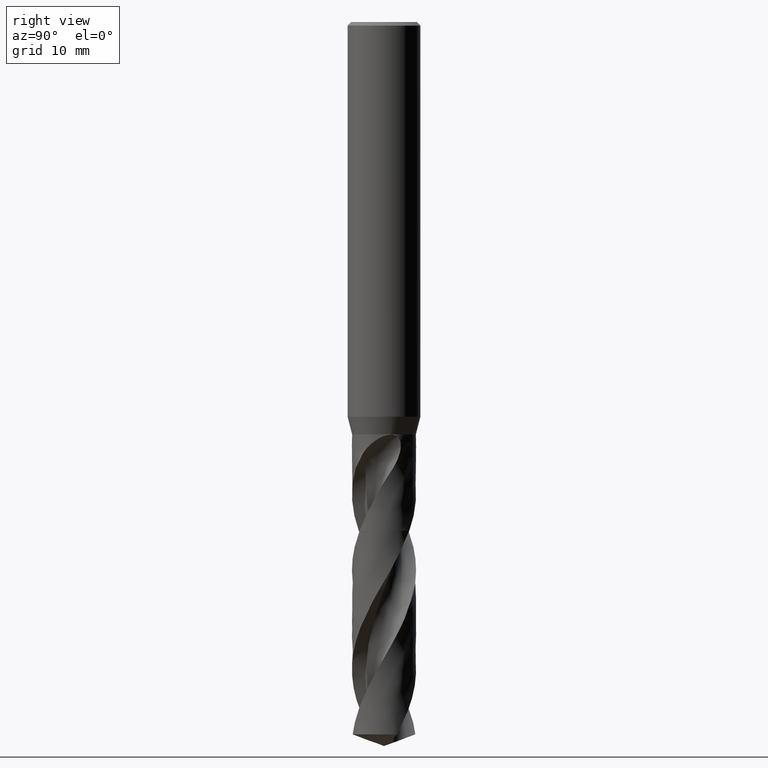
[diagram: clean part render]
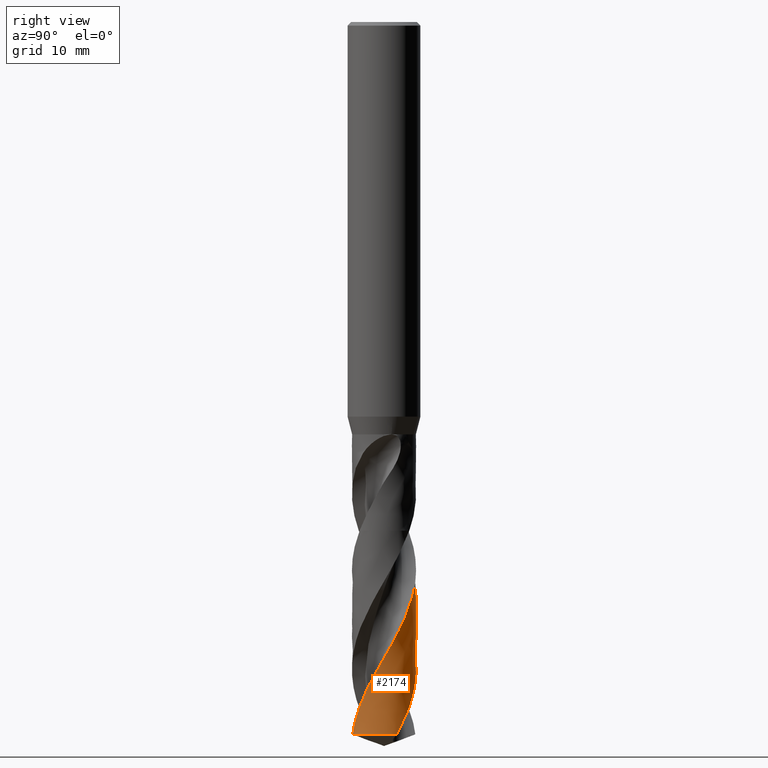
[diagram: same view with one face highlighted and labeled with its STEP entity id]
A machine part, right view. The second image highlights one B-rep face of the part: STEP entity #2174.
In plain terms, the highlighted face is a freeform B-spline surface patch.
Its self-contained STEP definition (entity closure, byte-faithful):
#1678 = VERTEX_POINT('', #1679);
#1679 = CARTESIAN_POINT('', (-3.5, 3.61270805748469E-15, -55.5));
#1784 = VERTEX_POINT('', #1785);
#1785 = CARTESIAN_POINT('', (-2.27351250297305, 2.66104131851147, -55.5));
#1855 = EDGE_CURVE('', #1678, #1784, #1856, .T.);
#1856 = CIRCLE('', #1857, 3.5);
#1857 = AXIS2_PLACEMENT_3D('', #1858, #1859, #1860);
#1858 = CARTESIAN_POINT('', (2.08091669844333E-31, 3.39839486763391E-15, -55.5));
#1859 = DIRECTION('', (3.74939945665464E-33, 6.12323399573677E-17, -1.));
#1860 = DIRECTION('', (-1., 6.12323399573677E-17, 0.));
#1872 = VERTEX_POINT('', #1873);
#1873 = CARTESIAN_POINT('', (-3.5, 3.95160296070943E-15, -61.0345737801412));
#1907 = EDGE_CURVE('', #1908, #1872, #1910, .T.);
#1908 = VERTEX_POINT('', #1909);
#1909 = CARTESIAN_POINT('', (3.19792631275269, 1.42241600743383, -77.7261041800683));
#1910 = B_SPLINE_CURVE_WITH_KNOTS('', 3, (#1911, #1912, #1913, #1914, #1915, #1916, #1917, #1918, #1919, #1920, #1921, #1922, #1923, #1924, #1925, #1926, #1927, #1928, #1929, #1930, #1931, #1932, #1933, #1934, #1935, #1936, #1937, #1938, #1939, #1940, #1941, #1942, #1943, #1944, #1945, #1946, #1947, #1948, #1949, #1950, #1951, #1952, #1953, #1954, #1955, #1956, #1957, #1958, #1959, #1960, #1961, #1962, #1963, #1964, #1965, #1966, #1967, #1968, #1969, #1970, #1971, #1972, #1973, #1974, #1975, #1976, #1977, #1978, #1979, #1980, #1981, #1982, #1983, #1984, #1985, #1986, #1987, #1988, #1989, #1990, #1991, #1992, #1993, #1994, #1995, #1996, #1997, #1998, #1999, #2000, #2001, #2002, #2003, #2004), .UNSPECIFIED., .F., .U., (4, 3, 3, 3, 3, 3, 3, 3, 3, 3, 3, 3, 3, 3, 3, 3, 3, 3, 3, 3, 3, 3, 3, 3, 3, 3, 3, 3, 3, 3, 3, 4), (0., 0.665648056662352, 1.33111019200664, 1.99638937858684, 2.66148780582144, 3.32640685160313, 3.99114706284363, 4.65570818555734, 5.32008915477022, 5.98428807460622, 6.64830218489924, 7.31212781025597, 7.97576031481546, 8.10706776787024, 8.16544412923008, 8.83198911601607, 9.49831969136428, 10.1644438311635, 10.8303682375001, 11.4960984290791, 12.1616388539613, 12.8269929769791, 13.4921633455714, 14.1571516368893, 14.8219586881774, 15.4865845117268, 16.1510282963672, 16.8152884355146, 17.4793625120888, 18.1432472243601, 18.8069383242188, 19.2191948978609), .UNSPECIFIED.);
#1911 = CARTESIAN_POINT('', (3.19792631275269, 1.42241600743383, -77.7261041800683));
#1912 = CARTESIAN_POINT('', (3.15333846559889, 1.52265999294646, -77.5332441442821));
#1913 = CARTESIAN_POINT('', (3.10401565139608, 1.620841901902, -77.3403380385368));
#1914 = CARTESIAN_POINT('', (3.05019959439073, 1.71647383737086, -77.1474901941735));
#1915 = CARTESIAN_POINT('', (2.9963985686803, 1.81207906200459, -76.954696213898));
#1916 = CARTESIAN_POINT('', (2.93807801262715, 1.90518693096879, -76.7618560870829));
#1917 = CARTESIAN_POINT('', (2.8755240700526, 1.9953348898238, -76.5690744023775));
#1918 = CARTESIAN_POINT('', (2.81298732479984, 2.08545806521364, -76.3763457171878));
#1919 = CARTESIAN_POINT('', (2.74618646775833, 2.17267061991853, -76.183570653926));
#1920 = CARTESIAN_POINT('', (2.67544935059256, 2.25653955702395, -75.9908541808678));
#1921 = CARTESIAN_POINT('', (2.60473145301951, 2.34038570656215, -75.7981900697417));
#1922 = CARTESIAN_POINT('', (2.53004224047157, 2.42093414727567, -75.6054795528292));
#1923 = CARTESIAN_POINT('', (2.45174869668041, 2.49778468414031, -75.4128276036312));
#1924 = CARTESIAN_POINT('', (2.3734762691768, 2.57461449390593, -75.2202276139405));
#1925 = CARTESIAN_POINT('', (2.29156014978641, 2.64778891605358, -75.0275813018316));
#1926 = CARTESIAN_POINT('', (2.2064034592199, 2.7169438299572, -74.8349934399618));
#1927 = CARTESIAN_POINT('', (2.12126967212981, 2.78608014417206, -74.6424573759195));
#1928 = CARTESIAN_POINT('', (2.03285175155351, 2.85123587386147, -74.4498751501755));
#1929 = CARTESIAN_POINT('', (1.94158562369221, 2.91208606773079, -74.257351189548));
#1930 = CARTESIAN_POINT('', (1.85034408395738, 2.97291986787006, -74.0648790970516));
#1931 = CARTESIAN_POINT('', (1.75620677066398, 3.02948315791028, -73.8723610339553));
#1932 = CARTESIAN_POINT('', (1.65963868082877, 3.08149305517585, -73.679901035996));
#1933 = CARTESIAN_POINT('', (1.56309676929208, 3.13348885326415, -73.48749321133));
#1934 = CARTESIAN_POINT('', (1.46407287419531, 3.18096198958346, -73.2950395912682));
#1935 = CARTESIAN_POINT('', (1.36305692931654, 3.2236742713001, -73.1026438673929));
#1936 = CARTESIAN_POINT('', (1.26206866417374, 3.26637484927352, -72.9103008625497));
#1937 = CARTESIAN_POINT('', (1.15903406340955, 3.30434058058611, -72.7179121686226));
#1938 = CARTESIAN_POINT('', (1.05446344694581, 3.33738023591189, -72.5255812872845));
#1939 = CARTESIAN_POINT('', (0.949921926656809, 3.37041069814293, -72.333303920912));
#1940 = CARTESIAN_POINT('', (0.843787822778452, 3.39853596841132, -72.1409808477466));
#1941 = CARTESIAN_POINT('', (0.736586887603398, 3.4216136188955, -71.9487156453193));
#1942 = CARTESIAN_POINT('', (0.62941638214531, 3.44468471863111, -71.7565050186816));
#1943 = CARTESIAN_POINT('', (0.521121216742815, 3.46272366255948, -71.5642484995034));
#1944 = CARTESIAN_POINT('', (0.412237322634221, 3.47563812699601, -71.3720500809676));
#1945 = CARTESIAN_POINT('', (0.303385105134113, 3.48854883434397, -71.1799075769829));
#1946 = CARTESIAN_POINT('', (0.193886019195773, 3.49634500287129, -70.9877189187717));
#1947 = CARTESIAN_POINT('', (0.0842812862825978, 3.49898509067767, -70.7955885830206));
#1948 = CARTESIAN_POINT('', (0.0625947079087257, 3.49950746292935, -70.7575733488832));
#1949 = CARTESIAN_POINT('', (0.0409026399894575, 3.49982822274565, -70.7195579409731));
#1950 = CARTESIAN_POINT('', (0.0192093113132478, 3.4999472856543, -70.6815431557464));
#1951 = CARTESIAN_POINT('', (0.00956494182439703, 3.50000021836466, -70.6646426311549));
#1952 = CARTESIAN_POINT('', (-7.97439437248753E-5, 3.50001328759533, -70.6477421151787));
#1953 = CARTESIAN_POINT('', (-0.00972437897314665, 3.49998649089587, -70.6308416804723));
#1954 = CARTESIAN_POINT('', (-0.11984743184064, 3.49968052448642, -70.4378714479047));
#1955 = CARTESIAN_POINT('', (-0.229997160669895, 3.49417132150522, -70.2448547492178));
#1956 = CARTESIAN_POINT('', (-0.339622369570422, 3.48348340689142, -70.0518967923976));
#1957 = CARTESIAN_POINT('', (-0.449212314686625, 3.47279893032184, -69.8590009054959));
#1958 = CARTESIAN_POINT('', (-0.558338040024515, 3.45693324865392, -69.6660583365254));
#1959 = CARTESIAN_POINT('', (-0.666454107647296, 3.43596259036681, -69.4731747324877));
#1960 = CARTESIAN_POINT('', (-0.774536679884153, 3.41499842898907, -69.2803508856249));
#1961 = CARTESIAN_POINT('', (-0.881668594458222, 3.3889211478435, -69.0874801541488));
#1962 = CARTESIAN_POINT('', (-0.987314838669354, 3.35785786020543, -68.8946685423414));
#1963 = CARTESIAN_POINT('', (-1.09292940546647, 3.32680388671411, -68.7019147439782));
#1964 = CARTESIAN_POINT('', (-1.19711581315337, 3.29075025133888, -68.5091139813381));
#1965 = CARTESIAN_POINT('', (-1.29935378477994, 3.2498738040081, -68.3163723771525));
#1966 = CARTESIAN_POINT('', (-1.4015619390238, 3.20900927816456, -68.1236869854492));
#1967 = CARTESIAN_POINT('', (-1.50187753452597, 3.16330285841201, -67.9309546496358));
#1968 = CARTESIAN_POINT('', (-1.59979931474595, 3.11297962610397, -67.7382814192927));
#1969 = CARTESIAN_POINT('', (-1.6976931823175, 3.06267073845641, -67.5456631105425));
#1970 = CARTESIAN_POINT('', (-1.79324723824463, 3.00772060067154, -67.3529979509864));
#1971 = CARTESIAN_POINT('', (-1.88598348186998, 2.948400635279, -67.1603917798123));
#1972 = CARTESIAN_POINT('', (-1.97869376623812, 2.88909727506885, -66.967839524054));
#1973 = CARTESIAN_POINT('', (-2.06863802619236, 2.82539439207181, -66.7752405538685));
#1974 = CARTESIAN_POINT('', (-2.15536566985488, 2.75760744653967, -66.5827004219541));
#1975 = CARTESIAN_POINT('', (-2.24206936147774, 2.68983922209275, -66.3902134648833));
#1976 = CARTESIAN_POINT('', (-2.32560556802991, 2.6179521520734, -66.1976799392573));
#1977 = CARTESIAN_POINT('', (-2.40555513368605, 2.54230299114734, -66.0052051034197));
#1978 = CARTESIAN_POINT('', (-2.48548281472483, 2.46667453768764, -65.8127829537737));
#1979 = CARTESIAN_POINT('', (-2.5618698047493, 2.38724440915295, -65.6203143536705));
#1980 = CARTESIAN_POINT('', (-2.63433223260889, 2.30440744839924, -65.4279043348952));
#1981 = CARTESIAN_POINT('', (-2.70677491110933, 2.22159306454415, -65.2355467567388));
#1982 = CARTESIAN_POINT('', (-2.77533521470907, 2.13532791053188, -65.0431427773015));
#1983 = CARTESIAN_POINT('', (-2.83966816391695, 2.04604123097179, -64.8507973530899));
#1984 = CARTESIAN_POINT('', (-2.90398357583355, 1.95677889114004, -64.6585043626275));
#1985 = CARTESIAN_POINT('', (-2.96410945939132, 1.8644473816341, -64.4661649058967));
#1986 = CARTESIAN_POINT('', (-3.01974301955158, 1.76950617288256, -64.2738841071468));
#1987 = CARTESIAN_POINT('', (-3.07536134185583, 1.67459096822756, -64.081655973499));
#1988 = CARTESIAN_POINT('', (-3.12652028109273, 1.57701550869061, -63.8893811993186));
#1989 = CARTESIAN_POINT('', (-3.17296200667338, 1.47726507580979, -63.6971652622022));
#1990 = CARTESIAN_POINT('', (-3.21939089623421, 1.37754221293237, -63.5050024516126));
#1991 = CARTESIAN_POINT('', (-3.26113036999707, 1.27559149995183, -63.31279284134));
#1992 = CARTESIAN_POINT('', (-3.29796968954397, 1.17191976126752, -63.1206421919174));
#1993 = CARTESIAN_POINT('', (-3.33479869021399, 1.06827706155355, -62.9285453648487));
#1994 = CARTESIAN_POINT('', (-3.36675014336633, 0.962858409535763, -62.7364016739754));
#1995 = CARTESIAN_POINT('', (-3.39366206952621, 0.856187922047096, -62.5443169770485));
#1996 = CARTESIAN_POINT('', (-3.42056632160528, 0.749547852222966, -62.3522870541085));
#1997 = CARTESIAN_POINT('', (-3.44244841142891, 0.641599194707186, -62.1602102826447));
#1998 = CARTESIAN_POINT('', (-3.45919644471422, 0.532878932664068, -61.968192464256));
#1999 = CARTESIAN_POINT('', (-3.47593959367689, 0.424190377319191, -61.7762306450979));
#2000 = CARTESIAN_POINT('', (-3.48756071795782, 0.314671913979353, -61.5842220528814));
#2001 = CARTESIAN_POINT('', (-3.49399896605696, 0.204868799953621, -61.3922723192887));
#2002 = CARTESIAN_POINT('', (-3.49799813088255, 0.136663793779649, -61.2730413404504));
#2003 = CARTESIAN_POINT('', (-3.5, 0.0683302317551449, -61.1538001276048));
#2004 = CARTESIAN_POINT('', (-3.5, 4.27733297458698E-15, -61.0345737801412));
#2161 = EDGE_CURVE('', #1678, #1872, #2162, .T.);
#2162 = LINE('', #2163, #2164);
#2163 = CARTESIAN_POINT('', (-3.5, 3.61270805748469E-15, -55.5));
#2164 = VECTOR('', #2165, 5.5345737801412);
#2165 = DIRECTION('', (4.44089209850063E-16, 3.3889490322474E-16, -5.5345737801412));
#2174 = ADVANCED_FACE('', (#2175), #2340, .T.);
#2175 = FACE_OUTER_BOUND('', #2176, .T.);
#2176 = EDGE_LOOP('', (#2177, #2178, #2196, #2316, #2331, #2338, #2339));
#2177 = ORIENTED_EDGE('', *, *, #1855, .T.);
#2178 = ORIENTED_EDGE('', *, *, #2179, .T.);
#2179 = EDGE_CURVE('', #1784, #2180, #2182, .T.);
#2180 = VERTEX_POINT('', #2181);
#2181 = CARTESIAN_POINT('', (-1.42035455528917, 3.19884243708085, -57.2561173635629));
#2182 = B_SPLINE_CURVE_WITH_KNOTS('', 3, (#2183, #2184, #2185, #2186, #2187, #2188, #2189, #2190, #2191, #2192, #2193, #2194, #2195), .UNSPECIFIED., .F., .U., (4, 3, 3, 3, 4), (4.2210899888423, 4.68101404682923, 5.34566818876504, 6.01013429872996, 6.24777782940595), .UNSPECIFIED.);
#2183 = CARTESIAN_POINT('', (-2.27351250297305, 2.66104131851147, -55.5));
#2184 = CARTESIAN_POINT('', (-2.21528860404127, 2.71078604110273, -55.6328111025407));
#2185 = CARTESIAN_POINT('', (-2.15542255696311, 2.75862565120701, -55.7656713950018));
#2186 = CARTESIAN_POINT('', (-2.09407522129527, 2.80443380516588, -55.8984925763996));
#2187 = CARTESIAN_POINT('', (-2.00541980081818, 2.87063294986047, -56.0904376308489));
#2188 = CARTESIAN_POINT('', (-1.9136026945913, 2.932637352559, -56.2824406128461));
#2189 = CARTESIAN_POINT('', (-1.81909616396089, 2.99013196134598, -56.474398680909));
#2190 = CARTESIAN_POINT('', (-1.72461636941485, 3.04761030479446, -56.666302443655));
#2191 = CARTESIAN_POINT('', (-1.6273964670682, 3.10061346637828, -56.8582689516835));
#2192 = CARTESIAN_POINT('', (-1.52792948044927, 3.14887781642507, -57.0501911150378));
#2193 = CARTESIAN_POINT('', (-1.4923555278709, 3.16613935975872, -57.1188312756578));
#2194 = CARTESIAN_POINT('', (-1.45648953734022, 3.18279773110641, -57.1874750361506));
#2195 = CARTESIAN_POINT('', (-1.4203545552891, 3.19884243708088, -57.256117363563));
#2196 = ORIENTED_EDGE('', *, *, #2197, .T.);
#2197 = EDGE_CURVE('', #2180, #2198, #2200, .T.);
#2198 = VERTEX_POINT('', #2199);
#2199 = CARTESIAN_POINT('', (1.43178876151678, -3.19374090094895, -76.4695561598545));
#2200 = B_SPLINE_CURVE_WITH_KNOTS('', 3, (#2201, #2202, #2203, #2204, #2205, #2206, #2207, #2208, #2209, #2210, #2211, #2212, #2213, #2214, #2215, #2216, #2217, #2218, #2219, #2220, #2221, #2222, #2223, #2224, #2225, #2226, #2227, #2228, #2229, #2230, #2231, #2232, #2233, #2234, #2235, #2236, #2237, #2238, #2239, #2240, #2241, #2242, #2243, #2244, #2245, #2246, #2247, #2248, #2249, #2250, #2251, #2252, #2253, #2254, #2255, #2256, #2257, #2258, #2259, #2260, #2261, #2262, #2263, #2264, #2265, #2266, #2267, #2268, #2269, #2270, #2271, #2272, #2273, #2274, #2275, #2276, #2277, #2278, #2279, #2280, #2281, #2282, #2283, #2284, #2285, #2286, #2287, #2288, #2289, #2290, #2291, #2292, #2293, #2294, #2295, #2296, #2297, #2298, #2299, #2300, #2301, #2302, #2303, #2304, #2305, #2306, #2307, #2308, #2309, #2310, #2311, #2312, #2313, #2314, #2315), .UNSPECIFIED., .F., .U., (4, 3, 3, 3, 3, 3, 3, 3, 3, 3, 3, 3, 3, 3, 3, 3, 3, 3, 3, 3, 3, 3, 3, 3, 3, 3, 3, 3, 3, 3, 3, 3, 3, 3, 3, 3, 3, 3, 4), (0., 0.664211622965228, 1.32823477013196, 1.99206693812191, 2.65570423022195, 2.85261972636277, 2.91099322691183, 2.96937664486893, 3.6359386408563, 4.30227987214844, 4.96840931202328, 5.63433455897766, 6.30006195199046, 6.96559669691454, 7.63094296675591, 8.29610397838411, 8.96108204941765, 9.62587863757828, 10.2904943641651, 10.9549290299458, 11.6191816760828, 12.2832505302194, 12.9471329495867, 13.6108253683286, 13.9061054160099, 13.9936568706073, 14.08126202036, 14.7477833404415, 15.4140894450533, 16.0801889309581, 16.746089069662, 17.4117959323698, 18.0773145111967, 18.7426488144263, 19.4078019388857, 20.0727761262869, 20.7375727943405, 21.4021925751913, 22.1291472933103), .UNSPECIFIED.);
#2201 = CARTESIAN_POINT('', (-1.42035455528917, 3.19884243708085, -57.2561173635629));
#2202 = CARTESIAN_POINT('', (-1.31935759145126, 3.24368725219105, -57.4479720779118));
#2203 = CARTESIAN_POINT('', (-1.21622331678205, 3.28374846720777, -57.6398909707688));
#2204 = CARTESIAN_POINT('', (-1.11147360048923, 3.31882907595669, -57.8317672939331));
#2205 = CARTESIAN_POINT('', (-1.00675360783529, 3.35389973027918, -58.0235891705295));
#2206 = CARTESIAN_POINT('', (-0.90036053815993, 3.38401222660892, -58.2154751807422));
#2207 = CARTESIAN_POINT('', (-0.792831678724317, 3.40902008342739, -58.4073188970397));
#2208 = CARTESIAN_POINT('', (-0.685333745579666, 3.43402074775577, -58.5991074373164));
#2209 = CARTESIAN_POINT('', (-0.576639969976486, 3.45393382725669, -58.7909597417609));
#2210 = CARTESIAN_POINT('', (-0.467298527872982, 3.46866430861333, -58.9827699213302));
#2211 = CARTESIAN_POINT('', (-0.357989184260425, 3.4833904656606, -59.1745237927222));
#2212 = CARTESIAN_POINT('', (-0.2479709664674, 3.49294539110829, -59.366341382359));
#2213 = CARTESIAN_POINT('', (-0.137797188277734, 3.49728636730012, -59.5581168605133));
#2214 = CARTESIAN_POINT('', (-0.105106252352065, 3.49857442855093, -59.6150207805882));
#2215 = CARTESIAN_POINT('', (-0.0723981586182807, 3.49940404147367, -59.6719270689257));
#2216 = CARTESIAN_POINT('', (-0.0396872849338413, 3.49977498125445, -59.7288329004358));
#2217 = CARTESIAN_POINT('', (-0.0299904949889123, 3.49988494239983, -59.7457020278128));
#2218 = CARTESIAN_POINT('', (-0.0202933690774528, 3.49995460164434, -59.7625712729145));
#2219 = CARTESIAN_POINT('', (-0.0105962799268385, 3.49998395979921, -59.7794405611405));
#2220 = CARTESIAN_POINT('', (-0.000897543282259707, 3.5000133229419, -59.7963127153865));
#2221 = CARTESIAN_POINT('', (0.00880119789419517, 3.50000237140696, -59.813184985346));
#2222 = CARTESIAN_POINT('', (0.0184995642959521, 3.49995110910437, -59.8300573000926));
#2223 = CARTESIAN_POINT('', (0.129225566520118, 3.49936584870114, -60.0226880878736));
#2224 = CARTESIAN_POINT('', (0.239935331374218, 3.49352017065095, -60.2153836843873));
#2225 = CARTESIAN_POINT('', (0.350069684481149, 3.48244902561506, -60.4080363887875));
#2226 = CARTESIAN_POINT('', (0.460167561195719, 3.47138154733181, -60.6006252867964));
#2227 = CARTESIAN_POINT('', (0.569751977068205, 3.45508585934651, -60.793278548518));
#2228 = CARTESIAN_POINT('', (0.678269723982444, 3.43364968823712, -60.9858893071524));
#2229 = CARTESIAN_POINT('', (0.786752979368406, 3.41222033044927, -61.1784388459437));
#2230 = CARTESIAN_POINT('', (0.894231554186066, 3.38564164923064, -61.3710524513759));
#2231 = CARTESIAN_POINT('', (1.00016368736157, 3.35405315975824, -61.5636237614323));
#2232 = CARTESIAN_POINT('', (1.10606334848232, 3.32247435330768, -61.7561360413726));
#2233 = CARTESIAN_POINT('', (1.21047738144505, 3.28587098211151, -61.9487122859241));
#2234 = CARTESIAN_POINT('', (1.31288086961914, 3.24443274274387, -62.1412462701919));
#2235 = CARTESIAN_POINT('', (1.41525393255577, 3.203006815147, -62.3337230504299));
#2236 = CARTESIAN_POINT('', (1.51567505571989, 3.15672569908851, -62.5262638214235));
#2237 = CARTESIAN_POINT('', (1.6136411304071, 3.10582715266942, -62.7187622593545));
#2238 = CARTESIAN_POINT('', (1.71157885568695, 3.05494333526373, -62.9112049921177));
#2239 = CARTESIAN_POINT('', (1.80711717154853, 2.99941663718589, -63.1037118075293));
#2240 = CARTESIAN_POINT('', (1.89977928599436, 2.93953034760773, -63.2961761708986));
#2241 = CARTESIAN_POINT('', (1.99241515913601, 2.87966101743472, -63.4885860296201));
#2242 = CARTESIAN_POINT('', (2.08222700129777, 2.8154019492303, -63.6810600690773));
#2243 = CARTESIAN_POINT('', (2.1687683871111, 2.74707911845792, -63.8734915497609));
#2244 = CARTESIAN_POINT('', (2.25528567644532, 2.67877531141216, -64.065869450055));
#2245 = CARTESIAN_POINT('', (2.33858092556775, 2.60637326239896, -64.2583115789033));
#2246 = CARTESIAN_POINT('', (2.4182416795735, 2.53023856171183, -64.4507111099702));
#2247 = CARTESIAN_POINT('', (2.49788052431901, 2.45412480050728, -64.6430577250002));
#2248 = CARTESIAN_POINT('', (2.57392941648733, 2.37423981050177, -64.8354685126567));
#2249 = CARTESIAN_POINT('', (2.64601305633019, 2.29098557519033, -65.0278367837419));
#2250 = CARTESIAN_POINT('', (2.71807702342501, 2.20775406125643, -65.2201525545297));
#2251 = CARTESIAN_POINT('', (2.78621639335178, 2.12111069110482, -65.4125322876953));
#2252 = CARTESIAN_POINT('', (2.85009582524194, 2.03149053331254, -65.6048697553338));
#2253 = CARTESIAN_POINT('', (2.91395787838079, 1.94189475717785, -65.7971548965047));
#2254 = CARTESIAN_POINT('', (2.97359677814537, 1.84927542653294, -65.9895035957372));
#2255 = CARTESIAN_POINT('', (3.02871963258439, 1.75409731406154, -66.1818104813973));
#2256 = CARTESIAN_POINT('', (3.083827469942, 1.65894513089799, -66.3740649770245));
#2257 = CARTESIAN_POINT('', (3.13445202762856, 1.56118319270881, -66.5663825486247));
#2258 = CARTESIAN_POINT('', (3.18034538704487, 1.4613018918425, -66.7586587252213));
#2259 = CARTESIAN_POINT('', (3.2262261741296, 1.36144795312286, -66.9508822284056));
#2260 = CARTESIAN_POINT('', (3.26740390754698, 1.25942020696097, -67.1431685243004));
#2261 = CARTESIAN_POINT('', (3.30367810452324, 1.15572963174514, -67.3354136233873));
#2262 = CARTESIAN_POINT('', (3.33994226479545, 1.05206774666454, -67.5276055301963));
#2263 = CARTESIAN_POINT('', (3.37132580938969, 0.946686265124709, -67.7198601630029));
#2264 = CARTESIAN_POINT('', (3.39767754392118, 0.840111485181472, -67.9120736046474));
#2265 = CARTESIAN_POINT('', (3.42402188030484, 0.733566625696619, -68.1042330831096));
#2266 = CARTESIAN_POINT('', (3.44535178440108, 0.625770445741236, -68.2964553612633));
#2267 = CARTESIAN_POINT('', (3.4615665145486, 0.517259379186162, -68.4886363365609));
#2268 = CARTESIAN_POINT('', (3.47777660410197, 0.408779368085944, -68.6807623103936));
#2269 = CARTESIAN_POINT('', (3.48888328411512, 0.299526050718284, -68.8729512246265));
#2270 = CARTESIAN_POINT('', (3.49483682390614, 0.190040980501673, -69.0650986794534));
#2271 = CARTESIAN_POINT('', (3.49748558327678, 0.14133052993599, -69.1505860347717));
#2272 = CARTESIAN_POINT('', (3.49911567655992, 0.092565977143849, -69.2360802035425));
#2273 = CARTESIAN_POINT('', (3.49972598864853, 0.0437950268644054, -69.321571921082));
#2274 = CARTESIAN_POINT('', (3.4999069480853, 0.0293342880756023, -69.346920481831));
#2275 = CARTESIAN_POINT('', (3.49999827579153, 0.014872684978664, -69.3722693478257));
#2276 = CARTESIAN_POINT('', (3.49999997581548, 0.000411450618043931, -69.3976182717192));
#2277 = CARTESIAN_POINT('', (3.50000167688207, -0.0140586527925282, -69.4229827420637));
#2278 = CARTESIAN_POINT('', (3.49991364021401, -0.0285285278759104, -69.4483475073919));
#2279 = CARTESIAN_POINT('', (3.49973588506242, -0.0429969162426421, -69.4737123332861));
#2280 = CARTESIAN_POINT('', (3.49838348056767, -0.153075939460687, -69.6666941076035));
#2281 = CARTESIAN_POINT('', (3.49183166288148, -0.263101527946142, -69.8597396171543));
#2282 = CARTESIAN_POINT('', (3.48011851035681, -0.372525373460512, -70.0527432690887));
#2283 = CARTESIAN_POINT('', (3.46840913993415, -0.481913886715287, -70.2456846013788));
#2284 = CARTESIAN_POINT('', (3.45153535548484, -0.590760707370527, -70.4386891460881));
#2285 = CARTESIAN_POINT('', (3.42958673396767, -0.698523324016336, -70.6316523300399));
#2286 = CARTESIAN_POINT('', (3.40764491862527, -0.806252523930162, -70.8245556769238));
#2287 = CARTESIAN_POINT('', (3.38061923693867, -0.912957941035864, -71.0175218543557));
#2288 = CARTESIAN_POINT('', (3.34864982156243, -1.01810823223796, -71.2104469635412));
#2289 = CARTESIAN_POINT('', (3.31668997384629, -1.12322705454288, -71.4033143349843));
#2290 = CARTESIAN_POINT('', (3.27977157788594, -1.22685020508075, -71.5962444048457));
#2291 = CARTESIAN_POINT('', (3.2380837192838, -1.32846295654395, -71.7891334735392));
#2292 = CARTESIAN_POINT('', (3.19640796048751, -1.43004621513788, -71.9819665566206));
#2293 = CARTESIAN_POINT('', (3.1499425186973, -1.52967637224008, -72.1748623804105));
#2294 = CARTESIAN_POINT('', (3.09892329644124, -1.62686028987552, -72.3677171193772));
#2295 = CARTESIAN_POINT('', (3.04791850410577, -1.72401672069026, -72.560517312656));
#2296 = CARTESIAN_POINT('', (2.99233479176322, -1.81878118831459, -72.7533803898446));
#2297 = CARTESIAN_POINT('', (2.93245232828389, -1.91068661541929, -72.9462022207003));
#2298 = CARTESIAN_POINT('', (2.87258644567408, -2.00256659480846, -73.1389706610735));
#2299 = CARTESIAN_POINT('', (2.80839224781266, -2.09163823182053, -73.331802157588));
#2300 = CARTESIAN_POINT('', (2.74019131939709, -2.17746447344172, -73.5245922396191));
#2301 = CARTESIAN_POINT('', (2.67200896293893, -2.26326734351444, -73.7173298225233));
#2302 = CARTESIAN_POINT('', (2.59978630054187, -2.34587165142002, -73.9101305931324));
#2303 = CARTESIAN_POINT('', (2.52388328791612, -2.42487384186842, -74.1028898437207));
#2304 = CARTESIAN_POINT('', (2.44800069444092, -2.50385477943679, -74.2955972389211));
#2305 = CARTESIAN_POINT('', (2.3684004184459, -2.57927649639842, -74.4883678439722));
#2306 = CARTESIAN_POINT('', (2.28547764279546, -2.6507719525229, -74.6810969535759));
#2307 = CARTESIAN_POINT('', (2.20257700393969, -2.7222483224528, -74.873774612843));
#2308 = CARTESIAN_POINT('', (2.11631281291718, -2.78983746313855, -75.0665153295173));
#2309 = CARTESIAN_POINT('', (2.02711231520702, -2.8532114645669, -75.2592147714285));
#2310 = CARTESIAN_POINT('', (1.93793555171107, -2.91656860362157, -75.4518629404214));
#2311 = CARTESIAN_POINT('', (1.8457774791909, -2.97574590525291, -75.6445737726731));
#2312 = CARTESIAN_POINT('', (1.7510942888007, -3.03045686188231, -75.8372438116397));
#2313 = CARTESIAN_POINT('', (1.64753072665001, -3.09029917955097, -76.0479844454613));
#2314 = CARTESIAN_POINT('', (1.54089055816364, -3.14482937958732, -76.2587894874906));
#2315 = CARTESIAN_POINT('', (1.43178876151678, -3.19374090094895, -76.4695561598545));
#2316 = ORIENTED_EDGE('', *, *, #2317, .T.);
#2317 = EDGE_CURVE('', #2198, #2318, #2320, .T.);
#2318 = VERTEX_POINT('', #2319);
#2319 = CARTESIAN_POINT('', (0.756520265558892, -3.41726163584217, -77.7261041800683));
#2320 = B_SPLINE_CURVE_WITH_KNOTS('', 3, (#2321, #2322, #2323, #2324, #2325, #2326, #2327, #2328, #2329, #2330), .UNSPECIFIED., .F., .U., (4, 3, 3, 4), (0., 0.664250491699969, 1.3283210976726, 1.44439303823566), .UNSPECIFIED.);
#2321 = CARTESIAN_POINT('', (1.43178876151674, -3.19374090094897, -76.4695561598546));
#2322 = CARTESIAN_POINT('', (1.33209765248103, -3.23843350876135, -76.6621429362551));
#2323 = CARTESIAN_POINT('', (1.23029906205933, -3.27845896527893, -76.8547896278937));
#2324 = CARTESIAN_POINT('', (1.12689521360084, -3.31362447745109, -77.0473939989133));
#2325 = CARTESIAN_POINT('', (1.02351936794661, -3.34878046644816, -77.2399462107281));
#2326 = CARTESIAN_POINT('', (0.91848280620667, -3.37909831492289, -77.4325577955334));
#2327 = CARTESIAN_POINT('', (0.81230259322149, -3.40443306543755, -77.6251266821393));
#2328 = CARTESIAN_POINT('', (0.793743507395762, -3.40886128983036, -77.658785519256));
#2329 = CARTESIAN_POINT('', (0.775148480927054, -3.41313768399446, -77.6924448757474));
#2330 = CARTESIAN_POINT('', (0.756520265558894, -3.41726163584217, -77.7261041800683));
#2331 = ORIENTED_EDGE('', *, *, #2332, .F.);
#2332 = EDGE_CURVE('', #1908, #2318, #2333, .T.);
#2333 = CIRCLE('', #2334, 3.5);
#2334 = AXIS2_PLACEMENT_3D('', #2335, #2336, #2337);
#2335 = CARTESIAN_POINT('', (2.9142621278063E-31, 4.75935123471572E-15, -77.7261041800683));
#2336 = DIRECTION('', (3.74939945665464E-33, 6.12323399573677E-17, -1.));
#2337 = DIRECTION('', (-1., 6.12323399573677E-17, 0.));
#2338 = ORIENTED_EDGE('', *, *, #1907, .T.);
#2339 = ORIENTED_EDGE('', *, *, #2161, .F.);
#2340 = (
   BOUNDED_SURFACE ()
   B_SPLINE_SURFACE (2, 1, ((#2341, #2342), (#2343, #2344), (#2345, #2346), (#2347, #2348), (#2349, #2350), (#2351, #2352), (#2353, #2354)), .UNSPECIFIED., .F., .F., .U.)
   B_SPLINE_SURFACE_WITH_KNOTS ((3, 2, 2, 3), (2, 2), (0., 5.49778714378214, 10.9955742875643, 15.6798797232171), (0.320844789291937, 1.), .UNSPECIFIED.)
   GEOMETRIC_REPRESENTATION_ITEM ()
   RATIONAL_B_SPLINE_SURFACE (((1., 1.), (0.707106781186548, 0.707106781186548), (1., 1.), (0.707106781186548, 0.707106781186548), (1., 1.), (0.75044481332723, 0.75044481332723), (0.926148985321597, 0.926148985321597)))
   REPRESENTATION_ITEM ('')
   SURFACE ()
);
#2341 = CARTESIAN_POINT('', (-3.5, 3.61270805748469E-15, -55.5));
#2342 = CARTESIAN_POINT('', (-3.5, 4.9736644245665E-15, -77.7261041800683));
#2343 = CARTESIAN_POINT('', (-3.5, 3.5, -55.5));
#2344 = CARTESIAN_POINT('', (-3.5, 3.5, -77.7261041800683));
#2345 = CARTESIAN_POINT('', (2.2186712959341E-31, 3.5, -55.5));
#2346 = CARTESIAN_POINT('', (2.95822839457879E-31, 3.5, -77.7261041800683));
#2347 = CARTESIAN_POINT('', (3.5, 3.5, -55.5));
#2348 = CARTESIAN_POINT('', (3.5, 3.5, -77.7261041800683));
#2349 = CARTESIAN_POINT('', (3.5, 3.61270805748469E-15, -55.5));
#2350 = CARTESIAN_POINT('', (3.5, 4.9736644245665E-15, -77.7261041800683));
#2351 = CARTESIAN_POINT('', (3.5, -2.80990456505606, -55.5));
#2352 = CARTESIAN_POINT('', (3.5, -2.80990456505606, -77.7261041800683));
#2353 = CARTESIAN_POINT('', (0.756520265558894, -3.41726163584217, -55.5));
#2354 = CARTESIAN_POINT('', (0.756520265558894, -3.41726163584217, -77.7261041800683));